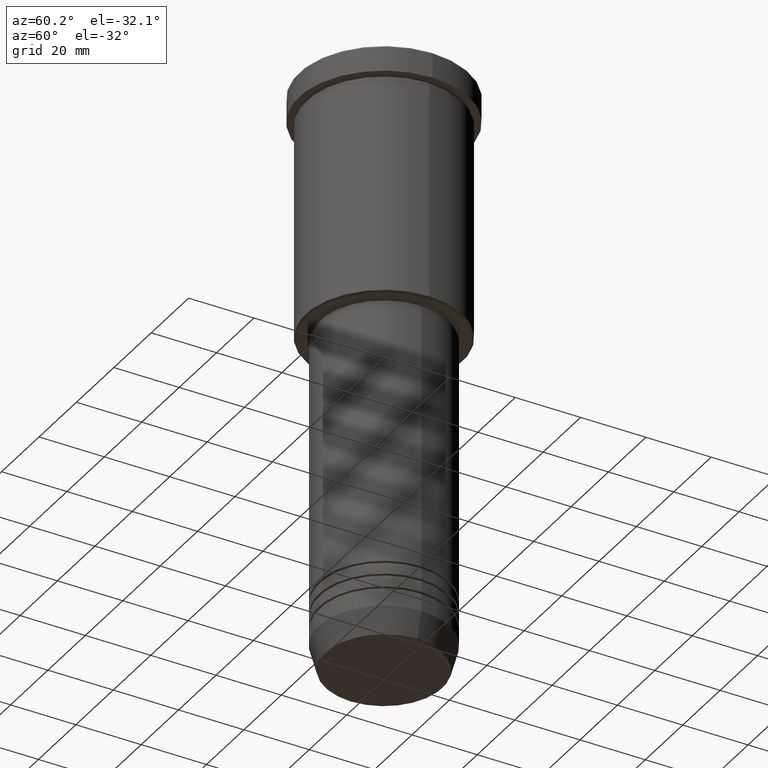
[diagram: clean part render]
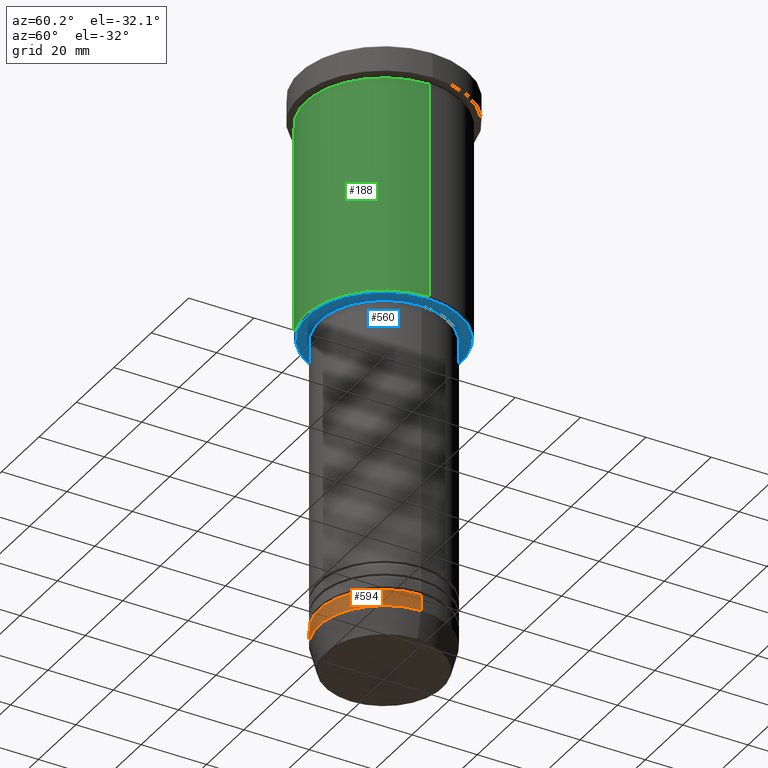
[diagram: same view with three faces highlighted in distinct colors, each labeled with its STEP entity id]
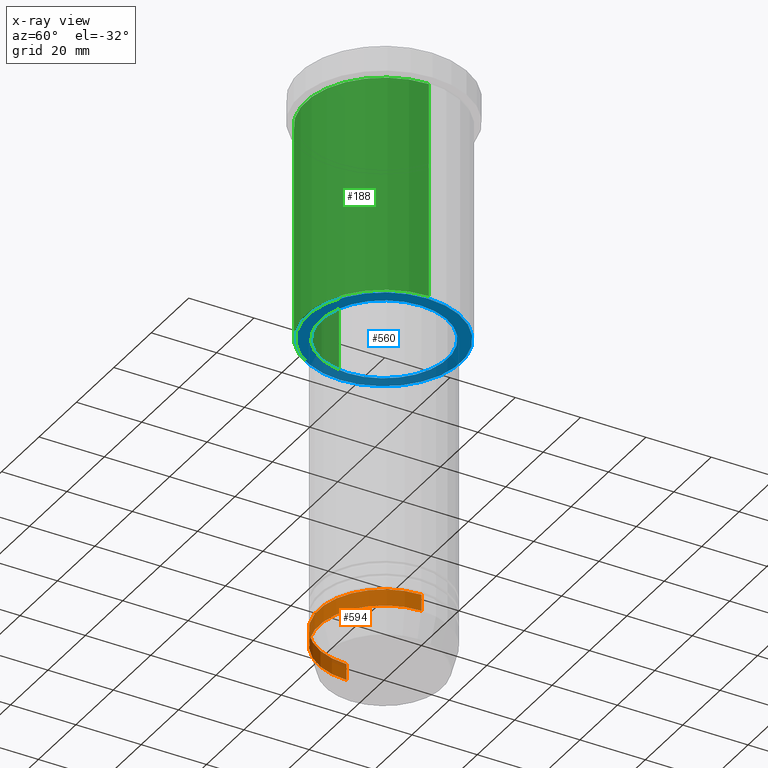
[diagram: x-ray of the same camera — body ghosted, the three highlighted faces saturated]
A machine part, auxiliary view with three faces highlighted in distinct colors.
The next image is the same camera in x-ray (body ghosted, the three faces saturated) — at least one of them is partly hidden behind the body in this view.
Their STEP definitions:

[orange] entity #594 — the highlighted cylindrical surface (partial cylindrical patch) has radius 20 mm, axis along (-0, -0, 1).
#53 = VECTOR ( 'NONE', #189, 1000.000000000000000 ) ;
#56 = ORIENTED_EDGE ( 'NONE', *, *, #504, .T. ) ;
#187 = DIRECTION ( 'NONE',  ( -0.000000000000000000, -0.000000000000000000, 1.000000000000000000 ) ) ;
#189 = DIRECTION ( 'NONE',  ( -0.000000000000000000, -0.000000000000000000, 1.000000000000000000 ) ) ;
#228 = CARTESIAN_POINT ( 'NONE',  ( 20.00000000000000000, 0.000000000000000000, -167.0000000000000000 ) ) ;
#252 = ORIENTED_EDGE ( 'NONE', *, *, #918, .F. ) ;
#269 = FACE_OUTER_BOUND ( 'NONE', #635, .T. ) ;
#301 = VECTOR ( 'NONE', #869, 1000.000000000000000 ) ;
#337 = DIRECTION ( 'NONE',  ( 1.000000000000000000, 0.000000000000000000, 0.000000000000000000 ) ) ;
#345 = AXIS2_PLACEMENT_3D ( 'NONE', #589, #583, #670 ) ;
#379 = CYLINDRICAL_SURFACE ( 'NONE', #700, 20.00000000000000355 ) ;
#382 = DIRECTION ( 'NONE',  ( -0.000000000000000000, -0.000000000000000000, 1.000000000000000000 ) ) ;
#397 = CIRCLE ( 'NONE', #345, 20.00000000000000355 ) ;
#504 = EDGE_CURVE ( 'NONE', #1101, #953, #905, .T. ) ;
#509 = CARTESIAN_POINT ( 'NONE',  ( -20.00000000000000355, 2.449293598294706907E-15, 0.000000000000000000 ) ) ;
#553 = CARTESIAN_POINT ( 'NONE',  ( 0.000000000000000000, 0.000000000000000000, 0.000000000000000000 ) ) ;
#583 = DIRECTION ( 'NONE',  ( -0.000000000000000000, -0.000000000000000000, 1.000000000000000000 ) ) ;
#589 = CARTESIAN_POINT ( 'NONE',  ( 0.000000000000000000, 0.000000000000000000, -172.0000000000000000 ) ) ;
#594 = ADVANCED_FACE ( 'NONE', ( #269 ), #379, .T. ) ;
#601 = VERTEX_POINT ( 'NONE', #638 ) ;
#635 = EDGE_LOOP ( 'NONE', ( #891, #753, #56, #252 ) ) ;
#638 = CARTESIAN_POINT ( 'NONE',  ( -20.00000000000000355, 2.449293598294706907E-15, -172.0000000000000000 ) ) ;
#670 = DIRECTION ( 'NONE',  ( 1.000000000000000000, 0.000000000000000000, 0.000000000000000000 ) ) ;
#673 = CARTESIAN_POINT ( 'NONE',  ( 0.000000000000000000, 0.000000000000000000, -167.0000000000000000 ) ) ;
#700 = AXIS2_PLACEMENT_3D ( 'NONE', #553, #187, #727 ) ;
#727 = DIRECTION ( 'NONE',  ( 1.000000000000000000, 0.000000000000000000, 0.000000000000000000 ) ) ;
#746 = VERTEX_POINT ( 'NONE', #925 ) ;
#753 = ORIENTED_EDGE ( 'NONE', *, *, #837, .T. ) ;
#799 = LINE ( 'NONE', #509, #301 ) ;
#837 = EDGE_CURVE ( 'NONE', #601, #1101, #397, .T. ) ;
#869 = DIRECTION ( 'NONE',  ( -0.000000000000000000, -0.000000000000000000, 1.000000000000000000 ) ) ;
#891 = ORIENTED_EDGE ( 'NONE', *, *, #1040, .F. ) ;
#905 = LINE ( 'NONE', #1013, #53 ) ;
#918 = EDGE_CURVE ( 'NONE', #746, #953, #1051, .T. ) ;
#925 = CARTESIAN_POINT ( 'NONE',  ( -20.00000000000000000, 2.449293598294706513E-15, -167.0000000000000000 ) ) ;
#953 = VERTEX_POINT ( 'NONE', #228 ) ;
#1013 = CARTESIAN_POINT ( 'NONE',  ( 20.00000000000000355, 0.000000000000000000, 0.000000000000000000 ) ) ;
#1040 = EDGE_CURVE ( 'NONE', #601, #746, #799, .T. ) ;
#1051 = CIRCLE ( 'NONE', #1108, 20.00000000000000000 ) ;
#1056 = CARTESIAN_POINT ( 'NONE',  ( 20.00000000000000355, 0.000000000000000000, -172.0000000000000000 ) ) ;
#1101 = VERTEX_POINT ( 'NONE', #1056 ) ;
#1108 = AXIS2_PLACEMENT_3D ( 'NONE', #673, #382, #337 ) ;

[blue] entity #560 — the highlighted planar face has unit normal (0, 0, -1).
#1 = CIRCLE ( 'NONE', #912, 23.50000000000000355 ) ;
#6 = FACE_BOUND ( 'NONE', #1117, .T. ) ;
#23 = CARTESIAN_POINT ( 'NONE',  ( 0.000000000000000000, 0.000000000000000000, -76.00000000000001421 ) ) ;
#37 = CIRCLE ( 'NONE', #1001, 23.50000000000000355 ) ;
#79 = AXIS2_PLACEMENT_3D ( 'NONE', #480, #94, #288 ) ;
#94 = DIRECTION ( 'NONE',  ( -0.000000000000000000, -0.000000000000000000, 1.000000000000000000 ) ) ;
#166 = DIRECTION ( 'NONE',  ( 0.000000000000000000, 0.000000000000000000, -1.000000000000000000 ) ) ;
#179 = PLANE ( 'NONE',  #763 ) ;
#206 = DIRECTION ( 'NONE',  ( -1.000000000000000000, 0.000000000000000000, 0.000000000000000000 ) ) ;
#208 = EDGE_CURVE ( 'NONE', #325, #729, #320, .T. ) ;
#288 = DIRECTION ( 'NONE',  ( 1.000000000000000000, 0.000000000000000000, 0.000000000000000000 ) ) ;
#320 = CIRCLE ( 'NONE', #79, 19.50000000000000355 ) ;
#325 = VERTEX_POINT ( 'NONE', #1146 ) ;
#332 = EDGE_LOOP ( 'NONE', ( #1089, #908 ) ) ;
#363 = DIRECTION ( 'NONE',  ( -1.000000000000000000, 0.000000000000000000, -0.000000000000000000 ) ) ;
#372 = EDGE_CURVE ( 'NONE', #1140, #484, #37, .T. ) ;
#474 = CARTESIAN_POINT ( 'NONE',  ( 0.000000000000000000, 0.000000000000000000, -76.00000000000001421 ) ) ;
#480 = CARTESIAN_POINT ( 'NONE',  ( 0.000000000000000000, 0.000000000000000000, -76.00000000000001421 ) ) ;
#484 = VERTEX_POINT ( 'NONE', #811 ) ;
#560 = ADVANCED_FACE ( 'NONE', ( #923, #6 ), #179, .T. ) ;
#587 = ORIENTED_EDGE ( 'NONE', *, *, #208, .T. ) ;
#604 = DIRECTION ( 'NONE',  ( 1.000000000000000000, 0.000000000000000000, 0.000000000000000000 ) ) ;
#633 = ORIENTED_EDGE ( 'NONE', *, *, #1010, .T. ) ;
#639 = CARTESIAN_POINT ( 'NONE',  ( -19.50000000000000355, 2.388061258337339333E-15, -76.00000000000001421 ) ) ;
#684 = CIRCLE ( 'NONE', #1155, 19.50000000000000355 ) ;
#729 = VERTEX_POINT ( 'NONE', #639 ) ;
#747 = DIRECTION ( 'NONE',  ( -1.000000000000000000, 0.000000000000000000, 0.000000000000000000 ) ) ;
#763 = AXIS2_PLACEMENT_3D ( 'NONE', #995, #166, #363 ) ;
#811 = CARTESIAN_POINT ( 'NONE',  ( -23.50000000000000355, 2.908536147974964502E-15, -76.00000000000001421 ) ) ;
#822 = EDGE_CURVE ( 'NONE', #484, #1140, #1, .T. ) ;
#840 = DIRECTION ( 'NONE',  ( 0.000000000000000000, 0.000000000000000000, -1.000000000000000000 ) ) ;
#908 = ORIENTED_EDGE ( 'NONE', *, *, #822, .T. ) ;
#912 = AXIS2_PLACEMENT_3D ( 'NONE', #23, #1131, #206 ) ;
#923 = FACE_OUTER_BOUND ( 'NONE', #332, .T. ) ;
#975 = DIRECTION ( 'NONE',  ( -0.000000000000000000, -0.000000000000000000, 1.000000000000000000 ) ) ;
#995 = CARTESIAN_POINT ( 'NONE',  ( 0.000000000000000000, 24.00000000000000000, -76.00000000000001421 ) ) ;
#1001 = AXIS2_PLACEMENT_3D ( 'NONE', #474, #840, #747 ) ;
#1010 = EDGE_CURVE ( 'NONE', #729, #325, #684, .T. ) ;
#1059 = CARTESIAN_POINT ( 'NONE',  ( 0.000000000000000000, 0.000000000000000000, -76.00000000000001421 ) ) ;
#1089 = ORIENTED_EDGE ( 'NONE', *, *, #372, .T. ) ;
#1099 = CARTESIAN_POINT ( 'NONE',  ( 23.50000000000000355, 0.000000000000000000, -76.00000000000001421 ) ) ;
#1117 = EDGE_LOOP ( 'NONE', ( #587, #633 ) ) ;
#1131 = DIRECTION ( 'NONE',  ( 0.000000000000000000, 0.000000000000000000, -1.000000000000000000 ) ) ;
#1140 = VERTEX_POINT ( 'NONE', #1099 ) ;
#1146 = CARTESIAN_POINT ( 'NONE',  ( 19.50000000000000355, 0.000000000000000000, -76.00000000000001421 ) ) ;
#1155 = AXIS2_PLACEMENT_3D ( 'NONE', #1059, #975, #604 ) ;

[green] entity #188 — the highlighted cylindrical surface (partial cylindrical patch) has radius 24 mm, axis along (-0, -0, 1).
#8 = EDGE_CURVE ( 'NONE', #637, #590, #668, .T. ) ;
#9 = DIRECTION ( 'NONE',  ( -0.000000000000000000, -0.000000000000000000, 1.000000000000000000 ) ) ;
#13 = CARTESIAN_POINT ( 'NONE',  ( 0.000000000000000000, 0.000000000000000000, 0.000000000000000000 ) ) ;
#67 = VECTOR ( 'NONE', #9, 1000.000000000000000 ) ;
#118 = ORIENTED_EDGE ( 'NONE', *, *, #455, .F. ) ;
#139 = VECTOR ( 'NONE', #571, 1000.000000000000000 ) ;
#167 = CARTESIAN_POINT ( 'NONE',  ( -24.00000000000000000, 2.939152317953647894E-15, 0.000000000000000000 ) ) ;
#174 = CIRCLE ( 'NONE', #577, 24.00000000000000000 ) ;
#188 = ADVANCED_FACE ( 'NONE', ( #1074 ), #1105, .T. ) ;
#213 = EDGE_LOOP ( 'NONE', ( #118, #917, #831, #507 ) ) ;
#230 = CARTESIAN_POINT ( 'NONE',  ( 24.00000000000000000, 0.000000000000000000, -75.50000000000000000 ) ) ;
#258 = CARTESIAN_POINT ( 'NONE',  ( 0.000000000000000000, 0.000000000000000000, -8.999999999999994671 ) ) ;
#264 = LINE ( 'NONE', #167, #67 ) ;
#287 = CARTESIAN_POINT ( 'NONE',  ( 24.00000000000000000, 0.000000000000000000, -8.999999999999994671 ) ) ;
#305 = DIRECTION ( 'NONE',  ( 1.000000000000000000, 0.000000000000000000, 0.000000000000000000 ) ) ;
#317 = VERTEX_POINT ( 'NONE', #326 ) ;
#326 = CARTESIAN_POINT ( 'NONE',  ( -24.00000000000000000, 2.939152317953647894E-15, -8.999999999999994671 ) ) ;
#380 = AXIS2_PLACEMENT_3D ( 'NONE', #607, #783, #1163 ) ;
#425 = CARTESIAN_POINT ( 'NONE',  ( -24.00000000000000000, 2.939152317953647894E-15, -75.50000000000000000 ) ) ;
#455 = EDGE_CURVE ( 'NONE', #1039, #317, #264, .T. ) ;
#465 = DIRECTION ( 'NONE',  ( -0.000000000000000000, -0.000000000000000000, 1.000000000000000000 ) ) ;
#493 = DIRECTION ( 'NONE',  ( 1.000000000000000000, 0.000000000000000000, 0.000000000000000000 ) ) ;
#507 = ORIENTED_EDGE ( 'NONE', *, *, #636, .F. ) ;
#529 = AXIS2_PLACEMENT_3D ( 'NONE', #13, #561, #493 ) ;
#561 = DIRECTION ( 'NONE',  ( -0.000000000000000000, -0.000000000000000000, 1.000000000000000000 ) ) ;
#571 = DIRECTION ( 'NONE',  ( -0.000000000000000000, -0.000000000000000000, 1.000000000000000000 ) ) ;
#577 = AXIS2_PLACEMENT_3D ( 'NONE', #258, #465, #305 ) ;
#590 = VERTEX_POINT ( 'NONE', #287 ) ;
#607 = CARTESIAN_POINT ( 'NONE',  ( 0.000000000000000000, 0.000000000000000000, -75.50000000000000000 ) ) ;
#636 = EDGE_CURVE ( 'NONE', #317, #590, #174, .T. ) ;
#637 = VERTEX_POINT ( 'NONE', #230 ) ;
#645 = CIRCLE ( 'NONE', #380, 24.00000000000000000 ) ;
#668 = LINE ( 'NONE', #1127, #139 ) ;
#783 = DIRECTION ( 'NONE',  ( -0.000000000000000000, -0.000000000000000000, 1.000000000000000000 ) ) ;
#831 = ORIENTED_EDGE ( 'NONE', *, *, #8, .T. ) ;
#917 = ORIENTED_EDGE ( 'NONE', *, *, #919, .T. ) ;
#919 = EDGE_CURVE ( 'NONE', #1039, #637, #645, .T. ) ;
#1039 = VERTEX_POINT ( 'NONE', #425 ) ;
#1074 = FACE_OUTER_BOUND ( 'NONE', #213, .T. ) ;
#1105 = CYLINDRICAL_SURFACE ( 'NONE', #529, 24.00000000000000000 ) ;
#1127 = CARTESIAN_POINT ( 'NONE',  ( 24.00000000000000000, 0.000000000000000000, 0.000000000000000000 ) ) ;
#1163 = DIRECTION ( 'NONE',  ( -1.000000000000000000, 0.000000000000000000, 0.000000000000000000 ) ) ;